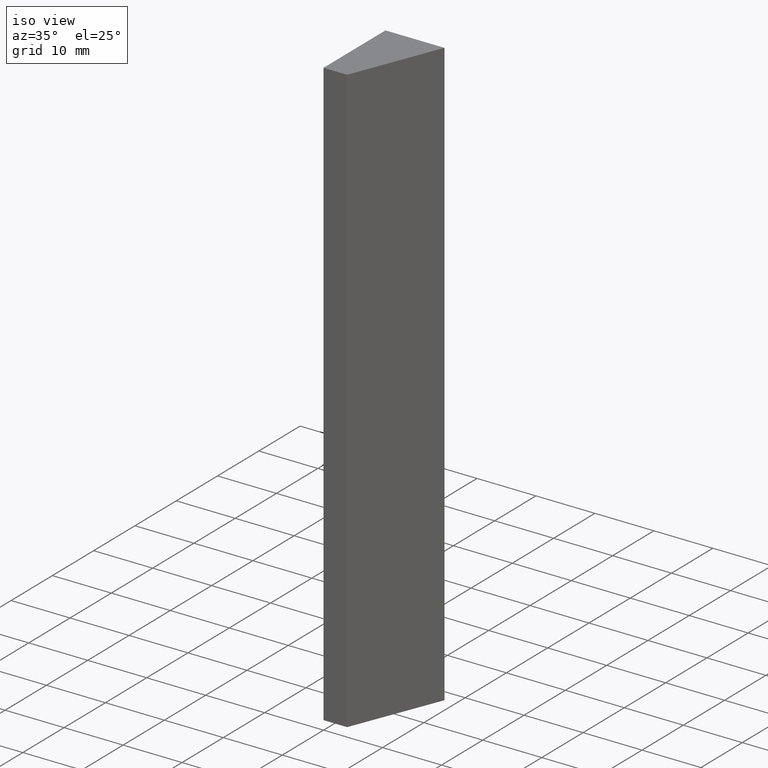
[diagram: clean part render]
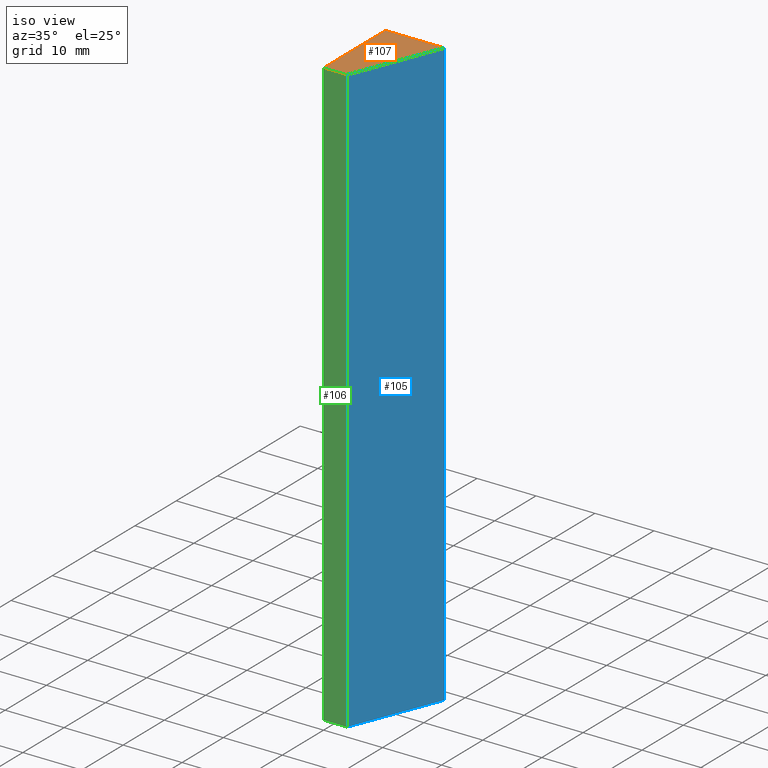
[diagram: same view with three faces highlighted in distinct colors, each labeled with its STEP entity id]
A machine part, iso view with three faces highlighted in distinct colors.
Their STEP definitions:

[orange] entity #107 — the highlighted planar face has unit normal (0, 0, 1).
#21=FACE_OUTER_BOUND('',#27,.T.);
#27=EDGE_LOOP('',(#92,#93,#94,#95));
#32=LINE('',#173,#44);
#35=LINE('',#178,#47);
#37=LINE('',#182,#49);
#39=LINE('',#185,#51);
#44=VECTOR('',#144,10.);
#47=VECTOR('',#149,10.);
#49=VECTOR('',#153,10.);
#51=VECTOR('',#157,10.);
#56=VERTEX_POINT('',#171);
#57=VERTEX_POINT('',#172);
#58=VERTEX_POINT('',#177);
#59=VERTEX_POINT('',#181);
#64=EDGE_CURVE('',#56,#57,#32,.T.);
#67=EDGE_CURVE('',#57,#58,#35,.T.);
#69=EDGE_CURVE('',#58,#59,#37,.T.);
#71=EDGE_CURVE('',#59,#56,#39,.T.);
#92=ORIENTED_EDGE('',*,*,#64,.F.);
#93=ORIENTED_EDGE('',*,*,#71,.F.);
#94=ORIENTED_EDGE('',*,*,#69,.F.);
#95=ORIENTED_EDGE('',*,*,#67,.F.);
#101=PLANE('',#133);
#107=ADVANCED_FACE('',(#21),#101,.T.);
#133=AXIS2_PLACEMENT_3D('',#186,#158,#159);
#144=DIRECTION('',(-2.03540887847945E-16,1.,0.));
#149=DIRECTION('',(1.,2.22044604925031E-16,0.));
#153=DIRECTION('',(-0.371390676354103,-0.928476690885259,0.));
#157=DIRECTION('',(-1.,-2.77555756156289E-16,0.));
#158=DIRECTION('center_axis',(0.,0.,1.));
#159=DIRECTION('ref_axis',(1.,0.,0.));
#171=CARTESIAN_POINT('',(2.22044604925031E-15,-2.22044604925031E-15,50.));
#172=CARTESIAN_POINT('',(-8.32667268468867E-16,15.,50.));
#173=CARTESIAN_POINT('',(2.22044604925031E-15,-2.22044604925031E-15,50.));
#177=CARTESIAN_POINT('',(10.,15.,50.));
#178=CARTESIAN_POINT('',(-8.32667268468867E-16,15.,50.));
#181=CARTESIAN_POINT('',(4.,-1.11022302462516E-15,50.));
#182=CARTESIAN_POINT('',(10.,15.,50.));
#185=CARTESIAN_POINT('',(4.,-1.11022302462516E-15,50.));
#186=CARTESIAN_POINT('Origin',(3.78887360535088,8.4965564673049,50.));

[blue] entity #105 — the highlighted planar face has unit normal (0.9285, -0.3714, 0).
#19=FACE_OUTER_BOUND('',#25,.T.);
#25=EDGE_LOOP('',(#84,#85,#86,#87));
#28=LINE('',#164,#40);
#36=LINE('',#179,#48);
#37=LINE('',#182,#49);
#38=LINE('',#183,#50);
#40=VECTOR('',#138,10.);
#48=VECTOR('',#150,10.);
#49=VECTOR('',#153,10.);
#50=VECTOR('',#154,10.);
#52=VERTEX_POINT('',#162);
#53=VERTEX_POINT('',#163);
#58=VERTEX_POINT('',#177);
#59=VERTEX_POINT('',#181);
#60=EDGE_CURVE('',#52,#53,#28,.T.);
#68=EDGE_CURVE('',#58,#53,#36,.T.);
#69=EDGE_CURVE('',#58,#59,#37,.T.);
#70=EDGE_CURVE('',#52,#59,#38,.T.);
#84=ORIENTED_EDGE('',*,*,#69,.T.);
#85=ORIENTED_EDGE('',*,*,#70,.F.);
#86=ORIENTED_EDGE('',*,*,#60,.T.);
#87=ORIENTED_EDGE('',*,*,#68,.F.);
#99=PLANE('',#131);
#105=ADVANCED_FACE('',(#19),#99,.T.);
#131=AXIS2_PLACEMENT_3D('',#180,#151,#152);
#138=DIRECTION('',(0.371390676354103,0.928476690885259,0.));
#150=DIRECTION('',(0.,0.,-1.));
#151=DIRECTION('center_axis',(0.928476690885259,-0.371390676354103,0.));
#152=DIRECTION('ref_axis',(0.,0.,-1.));
#153=DIRECTION('',(-0.371390676354103,-0.928476690885259,0.));
#154=DIRECTION('',(0.,0.,1.));
#162=CARTESIAN_POINT('',(4.,-1.11022302462516E-15,-50.));
#163=CARTESIAN_POINT('',(10.,15.,-50.));
#164=CARTESIAN_POINT('',(10.,15.,-50.));
#177=CARTESIAN_POINT('',(10.,15.,50.));
#179=CARTESIAN_POINT('',(10.,15.,0.));
#180=CARTESIAN_POINT('Origin',(10.,15.,0.));
#181=CARTESIAN_POINT('',(4.,-1.11022302462516E-15,50.));
#182=CARTESIAN_POINT('',(10.,15.,50.));
#183=CARTESIAN_POINT('',(4.,-1.11022302462516E-15,0.));

[green] entity #106 — the highlighted planar face has unit normal (0, -1, 0).
#20=FACE_OUTER_BOUND('',#26,.T.);
#26=EDGE_LOOP('',(#88,#89,#90,#91));
#29=LINE('',#166,#41);
#34=LINE('',#175,#46);
#38=LINE('',#183,#50);
#39=LINE('',#185,#51);
#41=VECTOR('',#139,10.);
#46=VECTOR('',#146,10.);
#50=VECTOR('',#154,10.);
#51=VECTOR('',#157,10.);
#52=VERTEX_POINT('',#162);
#54=VERTEX_POINT('',#165);
#56=VERTEX_POINT('',#171);
#59=VERTEX_POINT('',#181);
#61=EDGE_CURVE('',#54,#52,#29,.T.);
#66=EDGE_CURVE('',#56,#54,#34,.T.);
#70=EDGE_CURVE('',#52,#59,#38,.T.);
#71=EDGE_CURVE('',#59,#56,#39,.T.);
#88=ORIENTED_EDGE('',*,*,#71,.T.);
#89=ORIENTED_EDGE('',*,*,#66,.T.);
#90=ORIENTED_EDGE('',*,*,#61,.T.);
#91=ORIENTED_EDGE('',*,*,#70,.T.);
#100=PLANE('',#132);
#106=ADVANCED_FACE('',(#20),#100,.T.);
#132=AXIS2_PLACEMENT_3D('',#184,#155,#156);
#139=DIRECTION('',(1.,2.77555756156289E-16,0.));
#146=DIRECTION('',(0.,0.,-1.));
#154=DIRECTION('',(0.,0.,1.));
#155=DIRECTION('center_axis',(2.77555756156289E-16,-1.,0.));
#156=DIRECTION('ref_axis',(0.,0.,-1.));
#157=DIRECTION('',(-1.,-2.77555756156289E-16,0.));
#162=CARTESIAN_POINT('',(4.,-1.11022302462516E-15,-50.));
#165=CARTESIAN_POINT('',(2.22044604925031E-15,-2.22044604925031E-15,-50.));
#166=CARTESIAN_POINT('',(4.,-1.11022302462516E-15,-50.));
#171=CARTESIAN_POINT('',(2.22044604925031E-15,-2.22044604925031E-15,50.));
#175=CARTESIAN_POINT('',(2.22044604925031E-15,-2.22044604925031E-15,0.));
#181=CARTESIAN_POINT('',(4.,-1.11022302462516E-15,50.));
#183=CARTESIAN_POINT('',(4.,-1.11022302462516E-15,0.));
#184=CARTESIAN_POINT('Origin',(4.,-1.11022302462516E-15,0.));
#185=CARTESIAN_POINT('',(4.,-1.11022302462516E-15,50.));